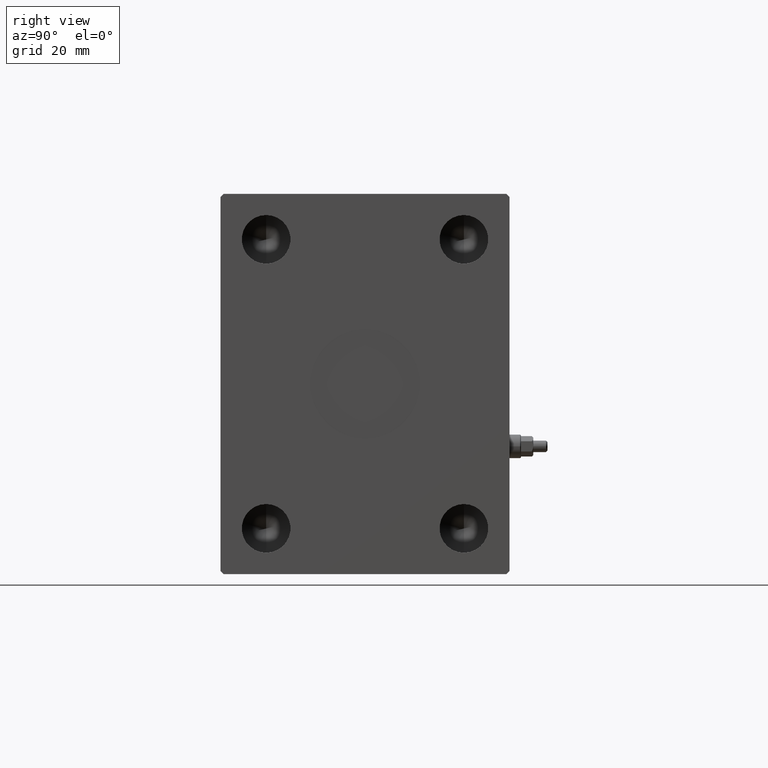
[diagram: clean part render]
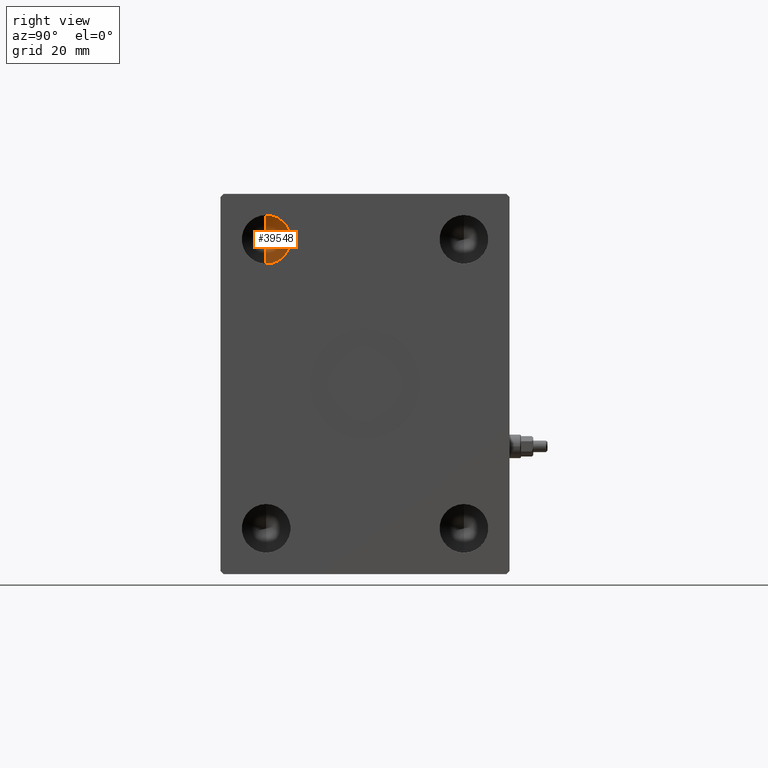
[diagram: same view with one face highlighted and labeled with its STEP entity id]
A machine part, right view. The second image highlights one B-rep face of the part: STEP entity #39548.
In plain terms, the highlighted conical surface has half-angle 59 deg.
Its self-contained STEP definition (entity closure, byte-faithful):
#112 = EDGE_CURVE ( 'NONE', #16896, #7572, #22903, .T. ) ;
#1732 = EDGE_LOOP ( 'NONE', ( #15665, #42090, #39259 ) ) ;
#2579 = CONICAL_SURFACE ( 'NONE', #36778, 7.999999999999992895, 1.029744258676653867 ) ;
#4261 = FACE_OUTER_BOUND ( 'NONE', #1732, .T. ) ;
#4635 = CARTESIAN_POINT ( 'NONE',  ( 138.3300000000000125, -32.50000000000000000, 55.49999999999999289 ) ) ;
#5029 = AXIS2_PLACEMENT_3D ( 'NONE', #25427, #35867, #36100 ) ;
#7572 = VERTEX_POINT ( 'NONE', #19405 ) ;
#10959 = CARTESIAN_POINT ( 'NONE',  ( 133.5231150477795268, -32.50000000000000711, 47.50000000000000000 ) ) ;
#11754 = DIRECTION ( 'NONE',  ( 1.000000000000000000, -0.000000000000000000, -0.000000000000000000 ) ) ;
#11952 = CARTESIAN_POINT ( 'NONE',  ( 138.3300000000000125, -32.50000000000000000, 39.50000000000000711 ) ) ;
#12365 = DIRECTION ( 'NONE',  ( 0.5150380749100547106, 1.049727191138618326E-16, 0.8571673007021120005 ) ) ;
#15561 = LINE ( 'NONE', #4635, #17065 ) ;
#15665 = ORIENTED_EDGE ( 'NONE', *, *, #35993, .F. ) ;
#16725 = VERTEX_POINT ( 'NONE', #32870 ) ;
#16896 = VERTEX_POINT ( 'NONE', #10959 ) ;
#17065 = VECTOR ( 'NONE', #12365, 1000.000000000000000 ) ;
#18130 = CIRCLE ( 'NONE', #5029, 7.999999999999992895 ) ;
#18570 = VECTOR ( 'NONE', #39751, 1000.000000000000000 ) ;
#19405 = CARTESIAN_POINT ( 'NONE',  ( 138.3300000000000125, -32.50000000000000000, 39.50000000000000711 ) ) ;
#22903 = LINE ( 'NONE', #11952, #18570 ) ;
#25427 = CARTESIAN_POINT ( 'NONE',  ( 138.3300000000000125, -32.50000000000000000, 47.50000000000000000 ) ) ;
#25670 = EDGE_CURVE ( 'NONE', #7572, #16725, #18130, .T. ) ;
#25675 = DIRECTION ( 'NONE',  ( 0.000000000000000000, 0.000000000000000000, -1.000000000000000000 ) ) ;
#32870 = CARTESIAN_POINT ( 'NONE',  ( 138.3300000000000125, -32.50000000000000000, 55.49999999999999289 ) ) ;
#35867 = DIRECTION ( 'NONE',  ( 1.000000000000000000, -0.000000000000000000, -0.000000000000000000 ) ) ;
#35993 = EDGE_CURVE ( 'NONE', #16896, #16725, #15561, .T. ) ;
#36100 = DIRECTION ( 'NONE',  ( 0.000000000000000000, 0.000000000000000000, -1.000000000000000000 ) ) ;
#36778 = AXIS2_PLACEMENT_3D ( 'NONE', #39336, #11754, #25675 ) ;
#39259 = ORIENTED_EDGE ( 'NONE', *, *, #25670, .T. ) ;
#39336 = CARTESIAN_POINT ( 'NONE',  ( 138.3300000000000125, -32.50000000000000000, 47.50000000000000000 ) ) ;
#39548 = ADVANCED_FACE ( 'NONE', ( #4261 ), #2579, .F. ) ;
#39751 = DIRECTION ( 'NONE',  ( 0.5150380749100547106, 0.000000000000000000, -0.8571673007021120005 ) ) ;
#42090 = ORIENTED_EDGE ( 'NONE', *, *, #112, .T. ) ;